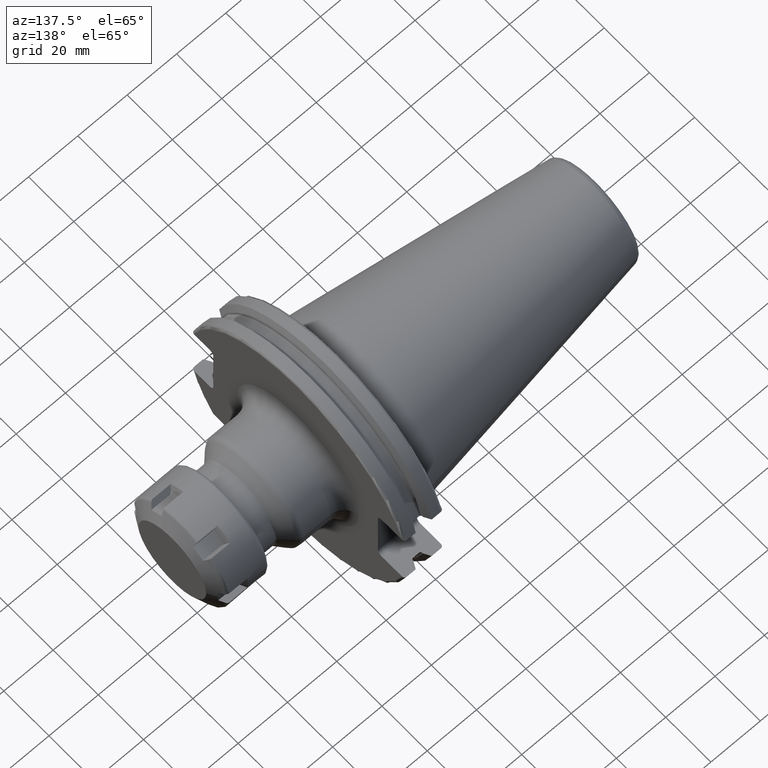
[diagram: clean part render]
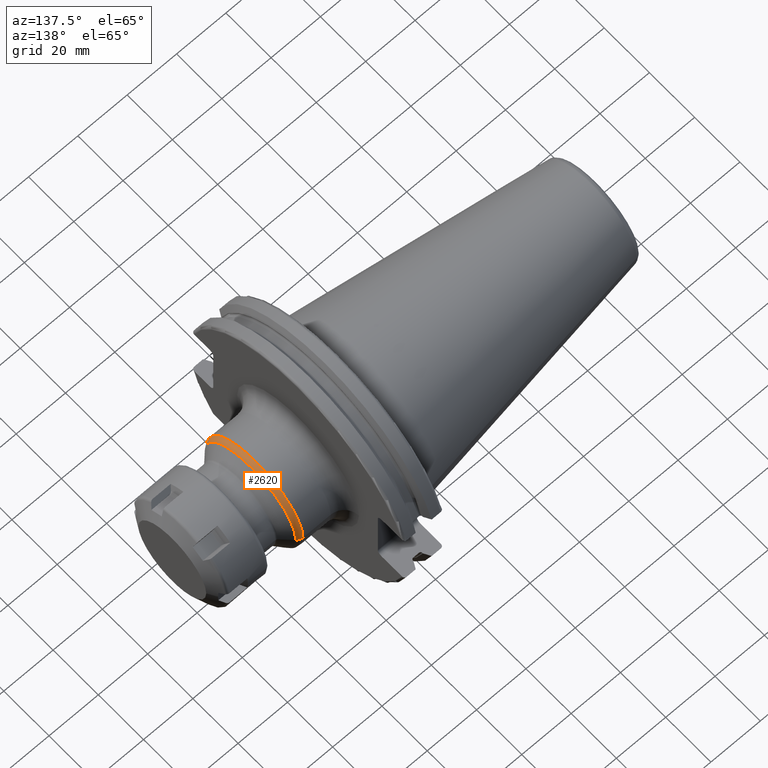
[diagram: same view with one face highlighted and labeled with its STEP entity id]
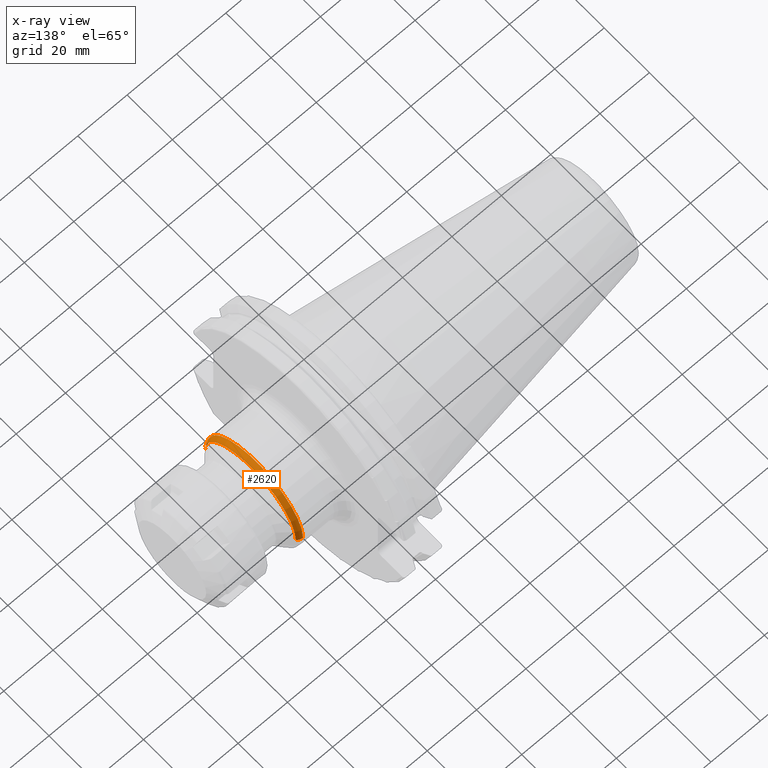
[diagram: x-ray of the same camera — body ghosted, the highlighted face saturated]
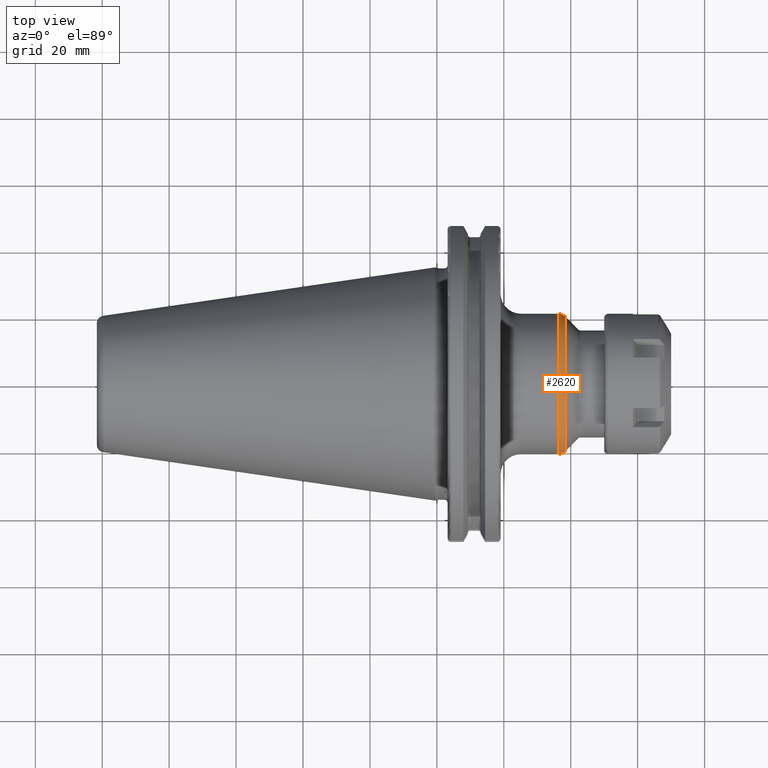
[diagram: same view with one face highlighted and labeled with its STEP entity id]
A machine part, auxiliary view. The second image highlights one B-rep face of the part: STEP entity #2620.
The next image is the same camera in x-ray: the body ghosted, the highlighted face saturated — about 0% of this face is hidden behind the body in this view.
A second angle (top view) of the same face is appended — the face is thin or edge-on in the first view.
In plain terms, the highlighted toroidal blend (fillet) surface has major radius 18 mm and minor (blend) radius 3 mm.
Its self-contained STEP definition (entity closure, byte-faithful):
#962=CARTESIAN_POINT('',(3.625735931288E1,0.E0,0.E0));
#963=DIRECTION('',(-1.E0,0.E0,0.E0));
#964=DIRECTION('',(0.E0,-1.E0,0.E0));
#965=AXIS2_PLACEMENT_3D('',#962,#963,#964);
#972=CARTESIAN_POINT('',(3.625735931288E1,-1.8E1,-5.001460356979E-11));
#973=DIRECTION('',(0.E0,-2.778588123475E-12,1.E0));
#974=DIRECTION('',(2.131628207280E-14,-1.E0,-2.778588123475E-12));
#975=AXIS2_PLACEMENT_3D('',#972,#973,#974);
#977=CARTESIAN_POINT('',(3.625735931288E1,1.8E1,5.001818403905E-11));
#978=DIRECTION('',(0.E0,2.778788484037E-12,-1.E0));
#979=DIRECTION('',(2.131628207280E-14,1.E0,2.778788484037E-12));
#980=AXIS2_PLACEMENT_3D('',#977,#978,#979);
#1018=CARTESIAN_POINT('',(3.837867965644E1,0.E0,0.E0));
#1019=DIRECTION('',(-1.E0,0.E0,0.E0));
#1020=DIRECTION('',(0.E0,-1.E0,0.E0));
#1021=AXIS2_PLACEMENT_3D('',#1018,#1019,#1020);
#1563=CARTESIAN_POINT('',(3.625735931288E1,2.1E1,0.E0));
#1564=CARTESIAN_POINT('',(3.625735931288E1,-2.1E1,0.E0));
#1565=VERTEX_POINT('',#1563);
#1566=VERTEX_POINT('',#1564);
#1567=CARTESIAN_POINT('',(3.837867965644E1,2.012132034356E1,0.E0));
#1568=CARTESIAN_POINT('',(3.837867965644E1,-2.012132034356E1,0.E0));
#1569=VERTEX_POINT('',#1567);
#1570=VERTEX_POINT('',#1568);
#2606=CARTESIAN_POINT('',(3.625735931288E1,0.E0,0.E0));
#2607=DIRECTION('',(1.E0,0.E0,0.E0));
#2608=DIRECTION('',(0.E0,-9.999752152794E-1,-7.040513262277E-3));
#2609=AXIS2_PLACEMENT_3D('',#2606,#2607,#2608);
#2610=TOROIDAL_SURFACE('',#2609,1.8E1,3.E0);
#2611=ORIENTED_EDGE('',*,*,#2596,.T.);
#2613=ORIENTED_EDGE('',*,*,#2612,.T.);
#2615=ORIENTED_EDGE('',*,*,#2614,.F.);
#2617=ORIENTED_EDGE('',*,*,#2616,.F.);
#2618=EDGE_LOOP('',(#2611,#2613,#2615,#2617));
#2619=FACE_OUTER_BOUND('',#2618,.F.);
#2620=ADVANCED_FACE('',(#2619),#2610,.T.);
#966=CIRCLE('',#965,2.1E1);
#976=CIRCLE('',#975,3.E0);
#981=CIRCLE('',#980,3.E0);
#1022=CIRCLE('',#1021,2.012132034356E1);
#2596=EDGE_CURVE('',#1566,#1565,#966,.T.);
#2612=EDGE_CURVE('',#1565,#1569,#981,.T.);
#2614=EDGE_CURVE('',#1570,#1569,#1022,.T.);
#2616=EDGE_CURVE('',#1566,#1570,#976,.T.);